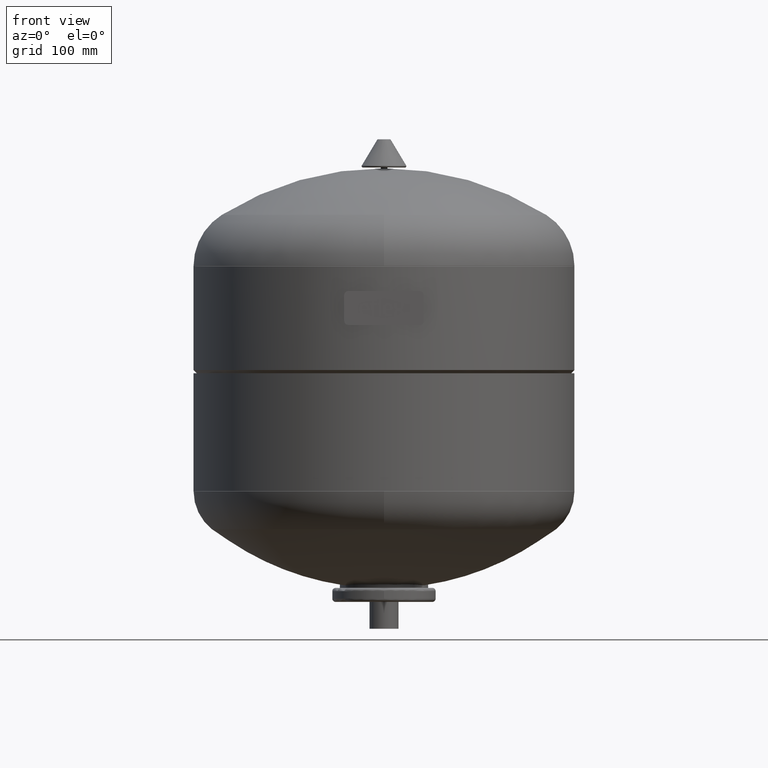
[diagram: clean part render]
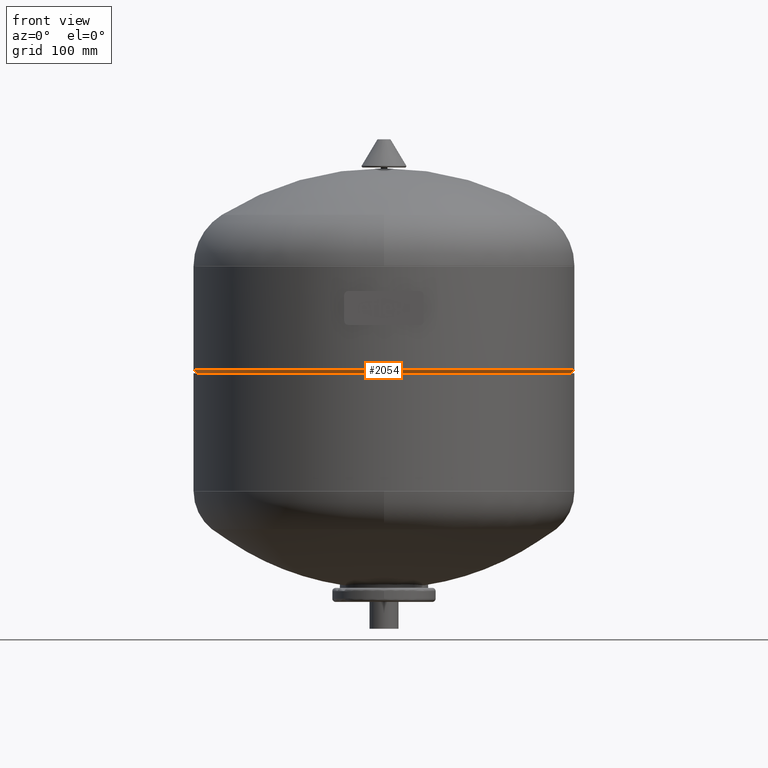
[diagram: same view with one face highlighted and labeled with its STEP entity id]
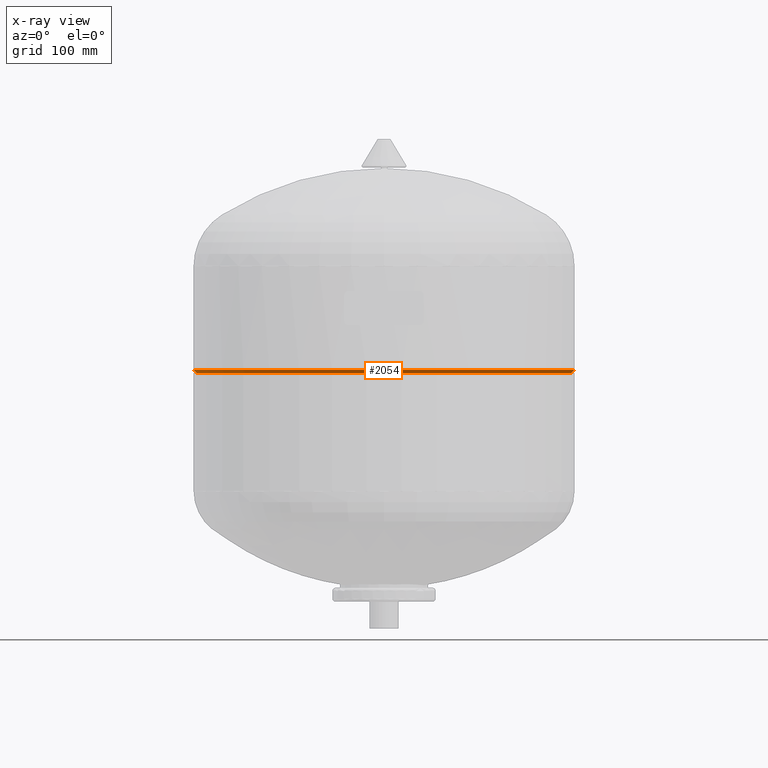
[diagram: x-ray of the same camera — body ghosted, the highlighted face saturated]
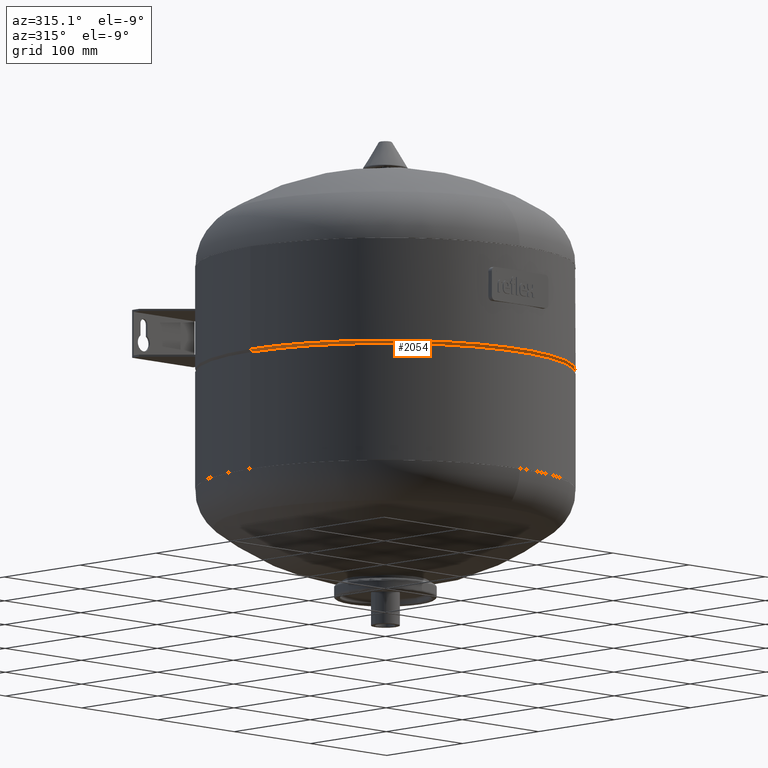
[diagram: same view with one face highlighted and labeled with its STEP entity id]
A machine part, front view. The second image highlights one B-rep face of the part: STEP entity #2054.
The next image is the same camera in x-ray: the body ghosted, the highlighted face saturated — about 0% of this face is hidden behind the body in this view.
A second angle (auxiliary view) of the same face is appended — the face is thin or edge-on in the first view.
In plain terms, the highlighted conical surface has half-angle 45 deg.
Its self-contained STEP definition (entity closure, byte-faithful):
#2013=CARTESIAN_POINT('',(0.0,0.0,238.99999999999994));
#2014=DIRECTION('',(0.0,0.0,1.0));
#2015=DIRECTION('',(1.0,0.0,0.0));
#2016=AXIS2_PLACEMENT_3D('',#2013,#2014,#2015);
#2017=CONICAL_SURFACE('',#2016,175.49999999999997,45.00000000000049);
#2018=CARTESIAN_POINT('',(177.0,0.0,240.49999999999994));
#2019=VERTEX_POINT('',#2018);
#2020=CARTESIAN_POINT('',(173.99999999999994,0.0,237.49999999999994));
#2021=VERTEX_POINT('',#2020);
#2022=CARTESIAN_POINT('',(177.0,0.0,240.49999999999994));
#2023=DIRECTION('',(-0.707106781186554,0.0,-0.707106781186541));
#2024=VECTOR('',#2023,4.242640687119326);
#2025=LINE('',#2022,#2024);
#2026=EDGE_CURVE('',#2019,#2021,#2025,.T.);
#2027=ORIENTED_EDGE('',*,*,#2026,.F.);
#2028=CARTESIAN_POINT('',(-177.0,-2.167553E-014,240.49999999999994));
#2029=VERTEX_POINT('',#2028);
#2030=CARTESIAN_POINT('',(0.0,0.0,240.49999999999994));
#2031=DIRECTION('',(0.0,0.0,1.0));
#2032=DIRECTION('',(1.0,0.0,0.0));
#2033=AXIS2_PLACEMENT_3D('',#2030,#2031,#2032);
#2034=CIRCLE('',#2033,177.0);
#2035=EDGE_CURVE('',#2029,#2019,#2034,.T.);
#2036=ORIENTED_EDGE('',*,*,#2035,.F.);
#2037=CARTESIAN_POINT('',(-173.99999999999994,-2.130815E-014,237.49999999999994));
#2038=VERTEX_POINT('',#2037);
#2039=CARTESIAN_POINT('',(-177.0,-2.167553E-014,240.49999999999994));
#2040=DIRECTION('',(0.707106781186554,8.659275E-017,-0.707106781186541));
#2041=VECTOR('',#2040,4.242640687119326);
#2042=LINE('',#2039,#2041);
#2043=EDGE_CURVE('',#2029,#2038,#2042,.T.);
#2044=ORIENTED_EDGE('',*,*,#2043,.T.);
#2045=CARTESIAN_POINT('',(0.0,0.0,237.49999999999994));
#2046=DIRECTION('',(0.0,0.0,1.0));
#2047=DIRECTION('',(1.0,0.0,0.0));
#2048=AXIS2_PLACEMENT_3D('',#2045,#2046,#2047);
#2049=CIRCLE('',#2048,173.99999999999994);
#2050=EDGE_CURVE('',#2038,#2021,#2049,.T.);
#2051=ORIENTED_EDGE('',*,*,#2050,.T.);
#2052=EDGE_LOOP('',(#2027,#2036,#2044,#2051));
#2053=FACE_OUTER_BOUND('',#2052,.T.);
#2054=ADVANCED_FACE('',(#2053),#2017,.T.);